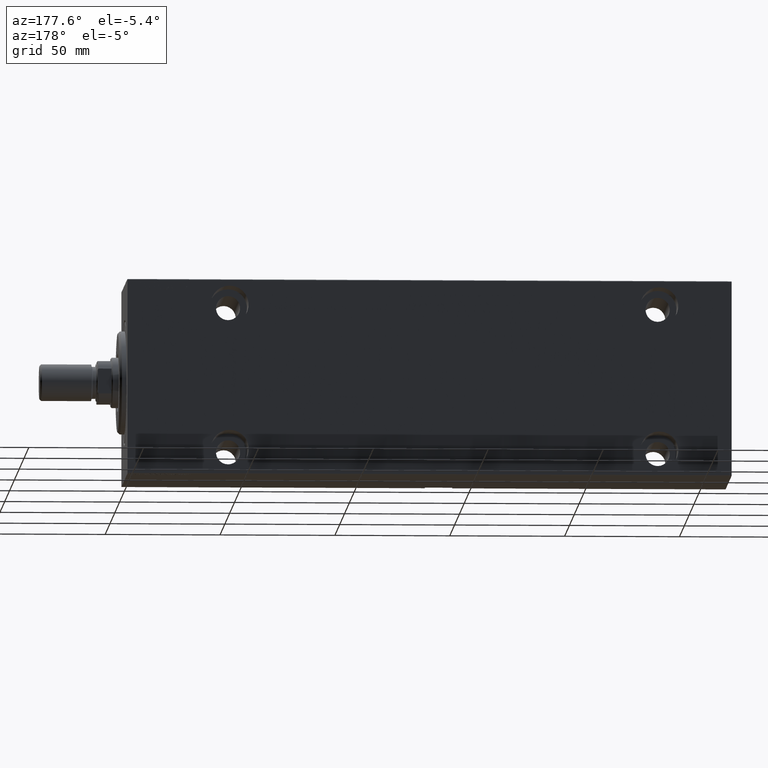
[diagram: clean part render]
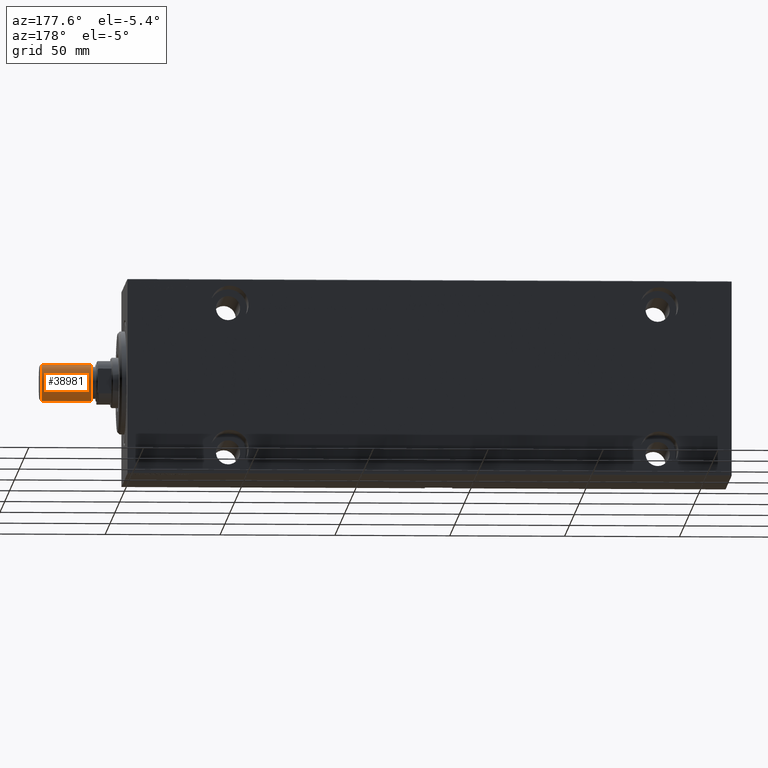
[diagram: same view with one face highlighted and labeled with its STEP entity id]
A machine part, auxiliary view. The second image highlights one B-rep face of the part: STEP entity #38981.
In plain terms, the highlighted cylindrical surface (edge-blend (fillet) strip) has radius 8 mm, axis along (1, -0, -0).
Its self-contained STEP definition (entity closure, byte-faithful):
#207 = EDGE_CURVE ( 'NONE', #24401, #30983, #22521, .T. ) ;
#729 = LINE ( 'NONE', #1384, #1199 ) ;
#746 = DIRECTION ( 'NONE',  ( 1.000000000000000000, 0.000000000000000000, 0.000000000000000000 ) ) ;
#860 = FACE_OUTER_BOUND ( 'NONE', #19654, .T. ) ;
#1199 = VECTOR ( 'NONE', #21061, 1000.000000000000000 ) ;
#1384 = CARTESIAN_POINT ( 'NONE',  ( 8.000000000000000000, 9.797174393178823685E-16, 22.50000000000000000 ) ) ;
#3850 = CARTESIAN_POINT ( 'NONE',  ( 0.000000000000000000, 0.000000000000000000, 0.8000000000000055955 ) ) ;
#4139 = VERTEX_POINT ( 'NONE', #33926 ) ;
#4510 = ORIENTED_EDGE ( 'NONE', *, *, #15818, .F. ) ;
#7418 = CARTESIAN_POINT ( 'NONE',  ( 8.000000000000000000, 9.797174393178823685E-16, 0.8000000000000055955 ) ) ;
#7846 = ORIENTED_EDGE ( 'NONE', *, *, #207, .T. ) ;
#7856 = CARTESIAN_POINT ( 'NONE',  ( -8.000000000000000000, 0.000000000000000000, 22.50000000000000000 ) ) ;
#9150 = CARTESIAN_POINT ( 'NONE',  ( -8.000000000000000000, 0.000000000000000000, 0.8000000000000055955 ) ) ;
#14008 = DIRECTION ( 'NONE',  ( -0.000000000000000000, -0.000000000000000000, 1.000000000000000000 ) ) ;
#14546 = CYLINDRICAL_SURFACE ( 'NONE', #32339, 8.000000000000000000 ) ;
#15818 = EDGE_CURVE ( 'NONE', #4139, #29814, #17391, .T. ) ;
#16135 = VECTOR ( 'NONE', #42083, 1000.000000000000000 ) ;
#16883 = EDGE_CURVE ( 'NONE', #4139, #24401, #729, .T. ) ;
#17391 = CIRCLE ( 'NONE', #27301, 8.000000000000000000 ) ;
#17873 = CARTESIAN_POINT ( 'NONE',  ( 0.000000000000000000, 0.000000000000000000, 22.50000000000000000 ) ) ;
#19654 = EDGE_LOOP ( 'NONE', ( #4510, #38036, #7846, #30053 ) ) ;
#19675 = AXIS2_PLACEMENT_3D ( 'NONE', #3850, #14008, #746 ) ;
#21061 = DIRECTION ( 'NONE',  ( -0.000000000000000000, -0.000000000000000000, -1.000000000000000000 ) ) ;
#21674 = EDGE_CURVE ( 'NONE', #29814, #30983, #34820, .T. ) ;
#22521 = CIRCLE ( 'NONE', #19675, 8.000000000000000000 ) ;
#22893 = DIRECTION ( 'NONE',  ( 1.000000000000000000, 0.000000000000000000, 0.000000000000000000 ) ) ;
#23150 = CARTESIAN_POINT ( 'NONE',  ( -8.000000000000000000, 0.000000000000000000, 22.50000000000000000 ) ) ;
#23858 = DIRECTION ( 'NONE',  ( -0.000000000000000000, -0.000000000000000000, -1.000000000000000000 ) ) ;
#24401 = VERTEX_POINT ( 'NONE', #7418 ) ;
#25997 = DIRECTION ( 'NONE',  ( 0.000000000000000000, 0.000000000000000000, 1.000000000000000000 ) ) ;
#27301 = AXIS2_PLACEMENT_3D ( 'NONE', #35934, #25997, #22893 ) ;
#29814 = VERTEX_POINT ( 'NONE', #23150 ) ;
#30053 = ORIENTED_EDGE ( 'NONE', *, *, #21674, .F. ) ;
#30983 = VERTEX_POINT ( 'NONE', #9150 ) ;
#31356 = DIRECTION ( 'NONE',  ( -1.000000000000000000, 0.000000000000000000, 0.000000000000000000 ) ) ;
#32339 = AXIS2_PLACEMENT_3D ( 'NONE', #17873, #23858, #31356 ) ;
#33926 = CARTESIAN_POINT ( 'NONE',  ( 8.000000000000000000, 9.797174393178823685E-16, 22.50000000000000000 ) ) ;
#34820 = LINE ( 'NONE', #7856, #16135 ) ;
#35934 = CARTESIAN_POINT ( 'NONE',  ( 0.000000000000000000, 0.000000000000000000, 22.50000000000000000 ) ) ;
#38036 = ORIENTED_EDGE ( 'NONE', *, *, #16883, .T. ) ;
#38981 = ADVANCED_FACE ( 'NONE', ( #860 ), #14546, .T. ) ;
#42083 = DIRECTION ( 'NONE',  ( -0.000000000000000000, -0.000000000000000000, -1.000000000000000000 ) ) ;